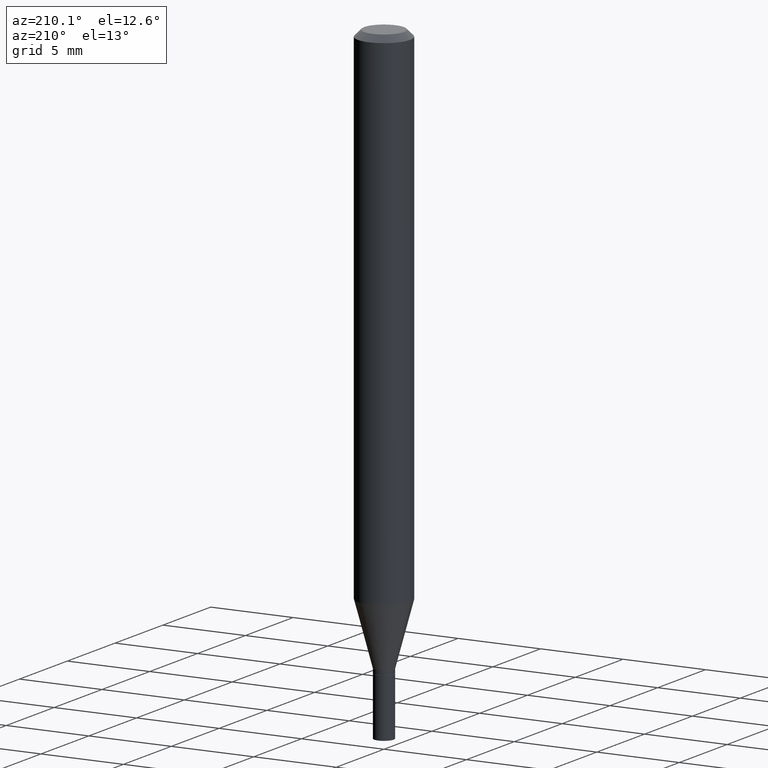
[diagram: clean part render]
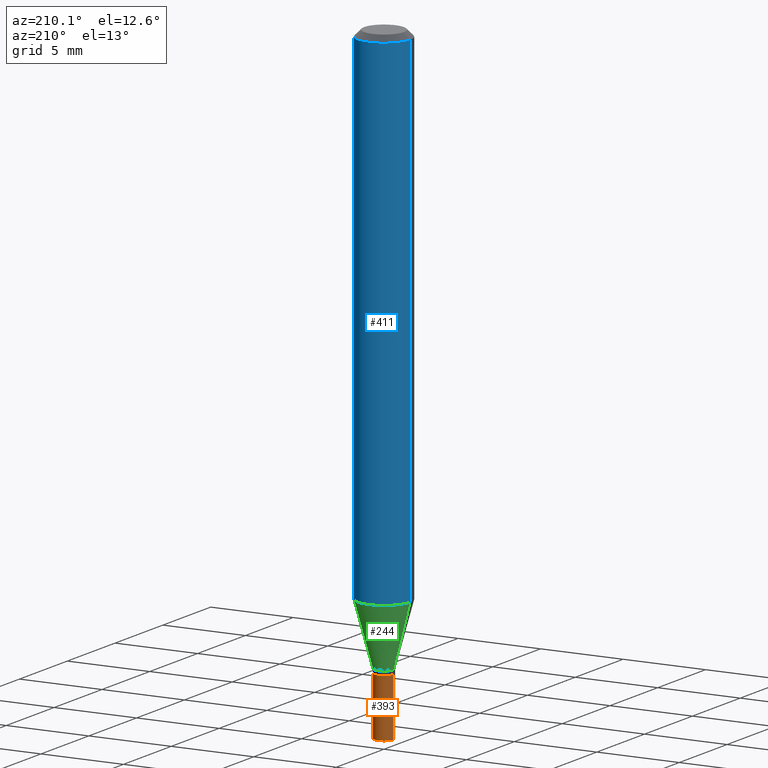
[diagram: same view with three faces highlighted in distinct colors, each labeled with its STEP entity id]
A machine part, auxiliary view with three faces highlighted in distinct colors.
Their STEP definitions:

[orange] entity #393 — the highlighted cylindrical surface (edge-blend (fillet) strip) has radius 0.5842 mm, axis along (-0, 0, 1).
#5 = DIRECTION ( 'NONE',  ( 1.000000000000000000, -6.982962677686267499E-15, 4.876176775795935793E-29 ) ) ;
#8 = AXIS2_PLACEMENT_3D ( 'NONE', #329, #154, #5 ) ;
#18 = DIRECTION ( 'NONE',  ( 1.000000000000000000, -6.982962677686247778E-15, 0.000000000000000000 ) ) ;
#40 = CARTESIAN_POINT ( 'NONE',  ( 0.02299999999999999961, -1.606081415867841462E-16, 1.121520658433065211E-30 ) ) ;
#42 = EDGE_CURVE ( 'NONE', #236, #197, #357, .T. ) ;
#53 = ORIENTED_EDGE ( 'NONE', *, *, #314, .T. ) ;
#62 = CARTESIAN_POINT ( 'NONE',  ( -0.02299999999999999961, -4.832884966659718819E-15, -1.362000000000000099 ) ) ;
#63 = DIRECTION ( 'NONE',  ( -2.445468806185136597E-29, 3.491481338843145583E-15, 1.000000000000000000 ) ) ;
#77 = LINE ( 'NONE', #40, #415 ) ;
#80 = VERTEX_POINT ( 'NONE', #419 ) ;
#100 = EDGE_CURVE ( 'NONE', #80, #335, #456, .T. ) ;
#113 = EDGE_LOOP ( 'NONE', ( #120, #53, #382, #288 ) ) ;
#120 = ORIENTED_EDGE ( 'NONE', *, *, #100, .T. ) ;
#129 = EDGE_CURVE ( 'NONE', #80, #236, #77, .T. ) ;
#151 = AXIS2_PLACEMENT_3D ( 'NONE', #340, #278, #18 ) ;
#154 = DIRECTION ( 'NONE',  ( -2.445468806185136597E-29, 3.491481338843145583E-15, 1.000000000000000000 ) ) ;
#161 = CARTESIAN_POINT ( 'NONE',  ( 0.02299999999999999961, -4.916005725091148109E-15, -1.362000000000000099 ) ) ;
#176 = CARTESIAN_POINT ( 'NONE',  ( 3.668203209277704895E-29, -5.237222008264718177E-15, -1.500000000000000222 ) ) ;
#188 = CYLINDRICAL_SURFACE ( 'NONE', #8, 0.02299999999999999961 ) ;
#197 = VERTEX_POINT ( 'NONE', #62 ) ;
#234 = CARTESIAN_POINT ( 'NONE',  ( -0.02299999999999999961, -4.832884966659718819E-15, -1.500000000000000222 ) ) ;
#236 = VERTEX_POINT ( 'NONE', #161 ) ;
#278 = DIRECTION ( 'NONE',  ( -2.445468806185136597E-29, 3.491481338843145583E-15, 1.000000000000000000 ) ) ;
#281 = DIRECTION ( 'NONE',  ( -2.445468806185136877E-29, 3.491481338843145188E-15, 1.000000000000000000 ) ) ;
#288 = ORIENTED_EDGE ( 'NONE', *, *, #129, .F. ) ;
#314 = EDGE_CURVE ( 'NONE', #335, #197, #409, .T. ) ;
#327 = DIRECTION ( 'NONE',  ( -2.445468806185136877E-29, 3.491481338843145188E-15, 1.000000000000000000 ) ) ;
#329 = CARTESIAN_POINT ( 'NONE',  ( 0.000000000000000000, 0.000000000000000000, 0.000000000000000000 ) ) ;
#335 = VERTEX_POINT ( 'NONE', #234 ) ;
#336 = FACE_OUTER_BOUND ( 'NONE', #113, .T. ) ;
#340 = CARTESIAN_POINT ( 'NONE',  ( 3.330728514024156148E-29, -4.755397583504364259E-15, -1.362000000000000099 ) ) ;
#357 = CIRCLE ( 'NONE', #151, 0.02299999999999999961 ) ;
#358 = VECTOR ( 'NONE', #327, 39.37007874015748143 ) ;
#382 = ORIENTED_EDGE ( 'NONE', *, *, #42, .F. ) ;
#393 = ADVANCED_FACE ( 'NONE', ( #336 ), #188, .T. ) ;
#395 = AXIS2_PLACEMENT_3D ( 'NONE', #176, #63, #459 ) ;
#407 = CARTESIAN_POINT ( 'NONE',  ( -0.02299999999999999961, 1.634248292248230400E-16, -1.131355070758628495E-30 ) ) ;
#409 = LINE ( 'NONE', #407, #358 ) ;
#415 = VECTOR ( 'NONE', #281, 39.37007874015748143 ) ;
#419 = CARTESIAN_POINT ( 'NONE',  ( 0.02299999999999999961, -5.397830149851502027E-15, -1.500000000000000222 ) ) ;
#456 = CIRCLE ( 'NONE', #395, 0.02299999999999999961 ) ;
#459 = DIRECTION ( 'NONE',  ( 1.000000000000000000, -6.982962677686247778E-15, 0.000000000000000000 ) ) ;

[blue] entity #411 — the highlighted cylindrical surface (edge-blend (fillet) strip) has radius 1.5875 mm, axis along (-0, 0, 1).
#30 = CARTESIAN_POINT ( 'NONE',  ( 0.06250000000000000000, -4.642217700336797405E-15, -1.204583993101029815 ) ) ;
#56 = DIRECTION ( 'NONE',  ( -2.445468806185136597E-29, 3.491481338843145583E-15, 1.000000000000000000 ) ) ;
#71 = LINE ( 'NONE', #178, #226 ) ;
#78 = EDGE_CURVE ( 'NONE', #162, #142, #414, .T. ) ;
#81 = CARTESIAN_POINT ( 'NONE',  ( -0.06250000000000000000, 4.440892098500626162E-16, -3.074334431409316114E-30 ) ) ;
#93 = VECTOR ( 'NONE', #223, 39.37007874015748143 ) ;
#94 = DIRECTION ( 'NONE',  ( 1.000000000000000000, -6.982962677686266711E-15, 4.876176775795935793E-29 ) ) ;
#124 = VERTEX_POINT ( 'NONE', #30 ) ;
#128 = CIRCLE ( 'NONE', #443, 0.06250000000000000000 ) ;
#137 = EDGE_CURVE ( 'NONE', #124, #462, #128, .T. ) ;
#142 = VERTEX_POINT ( 'NONE', #390 ) ;
#149 = FACE_OUTER_BOUND ( 'NONE', #155, .T. ) ;
#153 = CARTESIAN_POINT ( 'NONE',  ( 3.668203209277705088E-31, -5.237222008264718399E-17, -0.01499999999999999944 ) ) ;
#155 = EDGE_LOOP ( 'NONE', ( #287, #264, #330, #324 ) ) ;
#159 = CARTESIAN_POINT ( 'NONE',  ( -0.06250000000000000000, -3.761693323131343908E-15, -1.204583993101029815 ) ) ;
#162 = VERTEX_POINT ( 'NONE', #425 ) ;
#175 = DIRECTION ( 'NONE',  ( -2.445468806185136597E-29, 3.491481338843145583E-15, 1.000000000000000000 ) ) ;
#178 = CARTESIAN_POINT ( 'NONE',  ( 0.06250000000000000000, -4.364351673553916694E-16, 3.047610484872459871E-30 ) ) ;
#205 = AXIS2_PLACEMENT_3D ( 'NONE', #153, #298, #440 ) ;
#209 = DIRECTION ( 'NONE',  ( 1.000000000000000000, -6.982962677686270655E-15, 0.000000000000000000 ) ) ;
#223 = DIRECTION ( 'NONE',  ( -2.445468806185136877E-29, 3.491481338843145188E-15, 1.000000000000000000 ) ) ;
#226 = VECTOR ( 'NONE', #429, 39.37007874015748143 ) ;
#264 = ORIENTED_EDGE ( 'NONE', *, *, #338, .T. ) ;
#280 = EDGE_CURVE ( 'NONE', #124, #162, #71, .T. ) ;
#287 = ORIENTED_EDGE ( 'NONE', *, *, #137, .T. ) ;
#298 = DIRECTION ( 'NONE',  ( -2.445468806185136597E-29, 3.491481338843145583E-15, 1.000000000000000000 ) ) ;
#299 = CYLINDRICAL_SURFACE ( 'NONE', #310, 0.06250000000000000000 ) ;
#310 = AXIS2_PLACEMENT_3D ( 'NONE', #379, #56, #94 ) ;
#324 = ORIENTED_EDGE ( 'NONE', *, *, #280, .F. ) ;
#330 = ORIENTED_EDGE ( 'NONE', *, *, #78, .F. ) ;
#338 = EDGE_CURVE ( 'NONE', #462, #142, #367, .T. ) ;
#367 = LINE ( 'NONE', #81, #93 ) ;
#379 = CARTESIAN_POINT ( 'NONE',  ( 0.000000000000000000, 0.000000000000000000, 0.000000000000000000 ) ) ;
#383 = CARTESIAN_POINT ( 'NONE',  ( 2.945772579558500025E-29, -4.205782532981405736E-15, -1.204583993101029815 ) ) ;
#390 = CARTESIAN_POINT ( 'NONE',  ( -0.06250000000000000000, -1.684988166681963988E-15, -0.01499999999999999944 ) ) ;
#411 = ADVANCED_FACE ( 'NONE', ( #149 ), #299, .T. ) ;
#414 = CIRCLE ( 'NONE', #205, 0.06250000000000000000 ) ;
#425 = CARTESIAN_POINT ( 'NONE',  ( 0.06250000000000000000, -4.888073874380388472E-16, -0.01499999999999999944 ) ) ;
#429 = DIRECTION ( 'NONE',  ( -2.445468806185136877E-29, 3.491481338843145188E-15, 1.000000000000000000 ) ) ;
#440 = DIRECTION ( 'NONE',  ( 1.000000000000000000, -6.982962677686266711E-15, 0.000000000000000000 ) ) ;
#443 = AXIS2_PLACEMENT_3D ( 'NONE', #383, #175, #209 ) ;
#462 = VERTEX_POINT ( 'NONE', #159 ) ;

[green] entity #244 — the highlighted conical surface has half-angle 15 deg.
#1 = CARTESIAN_POINT ( 'NONE',  ( 3.306273825962305163E-29, -4.720482770115934188E-15, -1.352000000000000313 ) ) ;
#2 = CARTESIAN_POINT ( 'NONE',  ( 0.02299999999999992675, -4.881090911702717249E-15, -1.352000000000000313 ) ) ;
#4 = CARTESIAN_POINT ( 'NONE',  ( 0.02299999999999992675, -4.881090911702717249E-15, -1.352000000000000313 ) ) ;
#22 = EDGE_CURVE ( 'NONE', #321, #124, #229, .T. ) ;
#30 = CARTESIAN_POINT ( 'NONE',  ( 0.06250000000000000000, -4.642217700336797405E-15, -1.204583993101029815 ) ) ;
#44 = CIRCLE ( 'NONE', #445, 0.02299999999999992675 ) ;
#59 = ORIENTED_EDGE ( 'NONE', *, *, #108, .T. ) ;
#85 = AXIS2_PLACEMENT_3D ( 'NONE', #135, #315, #457 ) ;
#108 = EDGE_CURVE ( 'NONE', #368, #462, #345, .T. ) ;
#121 = CARTESIAN_POINT ( 'NONE',  ( -0.02299999999999992675, -4.159375632011227060E-15, -1.352000000000000313 ) ) ;
#123 = DIRECTION ( 'NONE',  ( -2.445468806185136597E-29, 3.491481338843145583E-15, 1.000000000000000000 ) ) ;
#124 = VERTEX_POINT ( 'NONE', #30 ) ;
#128 = CIRCLE ( 'NONE', #443, 0.06250000000000000000 ) ;
#130 = FACE_OUTER_BOUND ( 'NONE', #439, .T. ) ;
#135 = CARTESIAN_POINT ( 'NONE',  ( 3.306273825962305163E-29, -4.720482770115934188E-15, -1.352000000000000313 ) ) ;
#137 = EDGE_CURVE ( 'NONE', #124, #462, #128, .T. ) ;
#150 = ORIENTED_EDGE ( 'NONE', *, *, #22, .F. ) ;
#158 = VECTOR ( 'NONE', #451, 39.37007874015748143 ) ;
#159 = CARTESIAN_POINT ( 'NONE',  ( -0.06250000000000000000, -3.761693323131343908E-15, -1.204583993101029815 ) ) ;
#175 = DIRECTION ( 'NONE',  ( -2.445468806185136597E-29, 3.491481338843145583E-15, 1.000000000000000000 ) ) ;
#209 = DIRECTION ( 'NONE',  ( 1.000000000000000000, -6.982962677686270655E-15, 0.000000000000000000 ) ) ;
#229 = LINE ( 'NONE', #4, #380 ) ;
#230 = DIRECTION ( 'NONE',  ( 1.000000000000000000, -6.982962677686269866E-15, 0.000000000000000000 ) ) ;
#244 = ADVANCED_FACE ( 'NONE', ( #130 ), #297, .T. ) ;
#260 = ORIENTED_EDGE ( 'NONE', *, *, #137, .F. ) ;
#290 = EDGE_CURVE ( 'NONE', #321, #368, #44, .T. ) ;
#297 = CONICAL_SURFACE ( 'NONE', #85, 0.02299999999999992675, 0.2617993877991502405 ) ;
#315 = DIRECTION ( 'NONE',  ( -2.445468806185136597E-29, 3.491481338843145583E-15, 1.000000000000000000 ) ) ;
#321 = VERTEX_POINT ( 'NONE', #2 ) ;
#345 = LINE ( 'NONE', #353, #158 ) ;
#353 = CARTESIAN_POINT ( 'NONE',  ( -0.02299999999999992675, -4.557057940891111789E-15, -1.352000000000000313 ) ) ;
#362 = ORIENTED_EDGE ( 'NONE', *, *, #290, .T. ) ;
#368 = VERTEX_POINT ( 'NONE', #121 ) ;
#372 = DIRECTION ( 'NONE',  ( 0.2588190451025215166, 1.565188264969620784E-15, 0.9659258262890679791 ) ) ;
#380 = VECTOR ( 'NONE', #372, 39.37007874015748143 ) ;
#383 = CARTESIAN_POINT ( 'NONE',  ( 2.945772579558500025E-29, -4.205782532981405736E-15, -1.204583993101029815 ) ) ;
#439 = EDGE_LOOP ( 'NONE', ( #362, #59, #260, #150 ) ) ;
#443 = AXIS2_PLACEMENT_3D ( 'NONE', #383, #175, #209 ) ;
#445 = AXIS2_PLACEMENT_3D ( 'NONE', #1, #123, #230 ) ;
#451 = DIRECTION ( 'NONE',  ( -0.2588190451025215166, 5.211531920934551042E-15, 0.9659258262890679791 ) ) ;
#457 = DIRECTION ( 'NONE',  ( 1.000000000000000000, -6.982962677686269866E-15, 0.000000000000000000 ) ) ;
#462 = VERTEX_POINT ( 'NONE', #159 ) ;